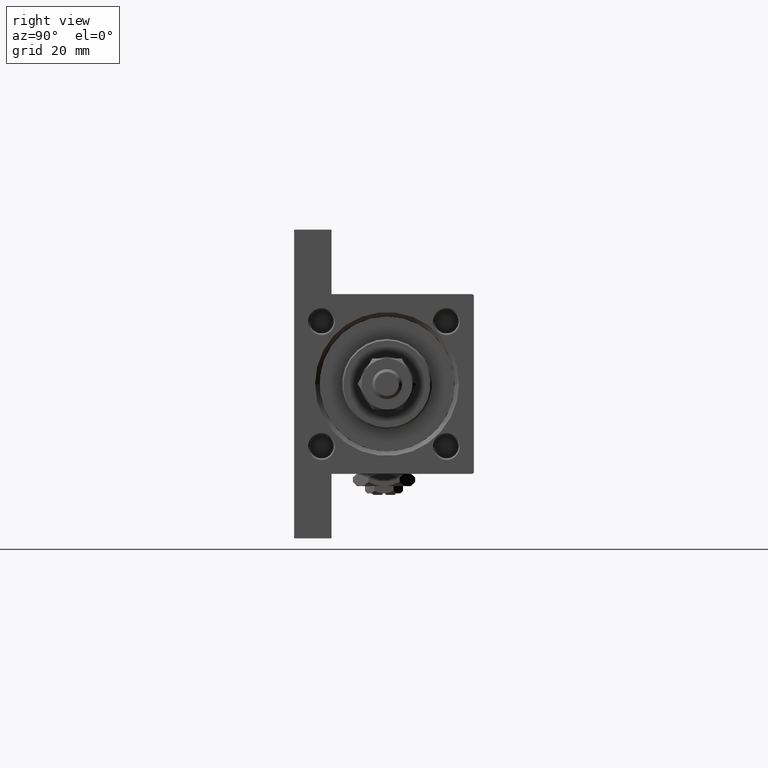
[diagram: clean part render]
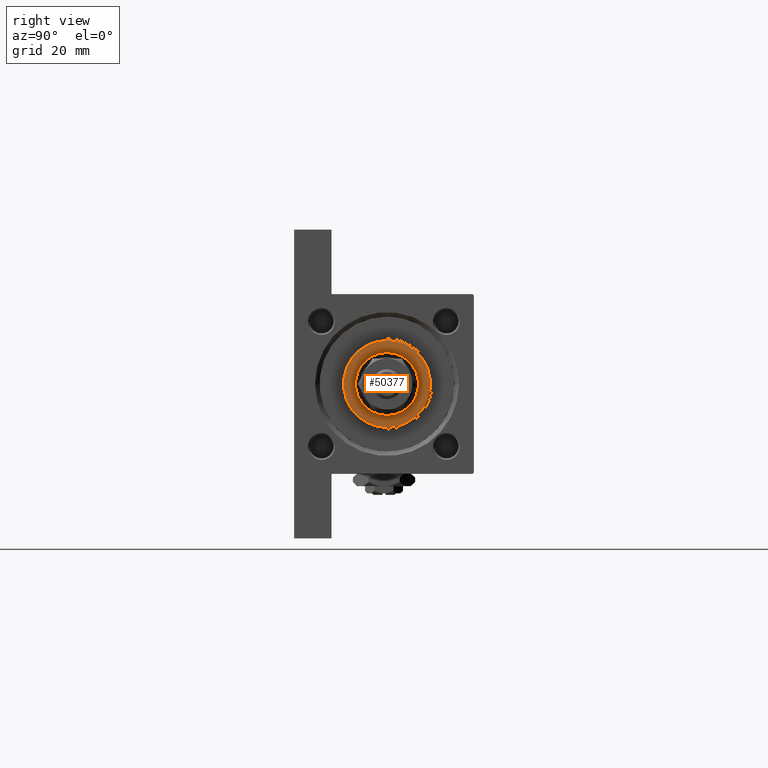
[diagram: same view with one face highlighted and labeled with its STEP entity id]
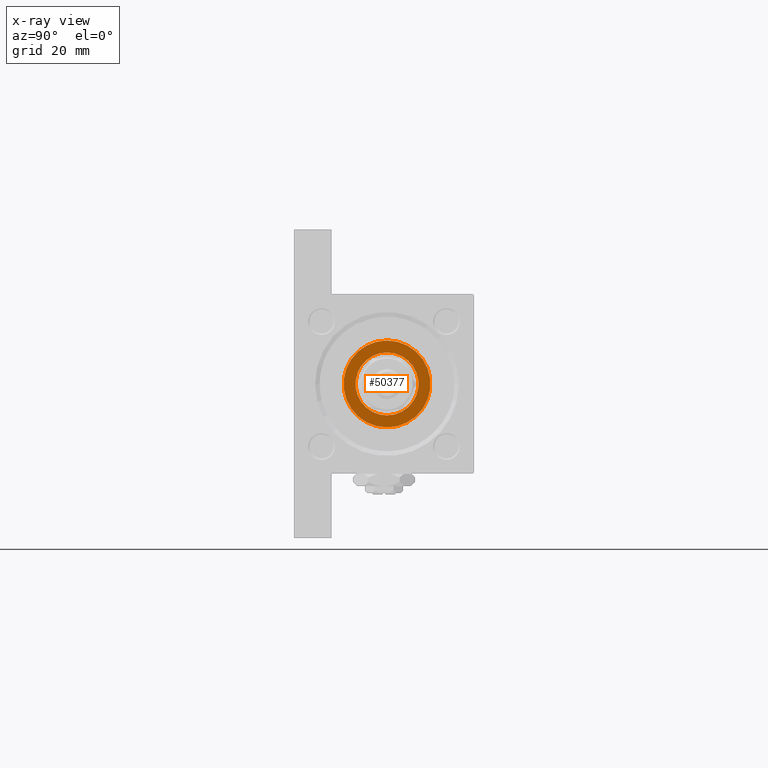
[diagram: x-ray of the same camera — body ghosted, the highlighted face saturated]
A machine part, right view. The second image highlights one B-rep face of the part: STEP entity #50377.
The next image is the same camera in x-ray: the body ghosted, the highlighted face saturated — about 0% of this face is hidden behind the body in this view.
In plain terms, the highlighted planar face has unit normal (1, 0, 0).
Its self-contained STEP definition (entity closure, byte-faithful):
#4028 = ORIENTED_EDGE ( 'NONE', *, *, #26335, .F. ) ;
#4838 = ORIENTED_EDGE ( 'NONE', *, *, #27908, .T. ) ;
#5103 = AXIS2_PLACEMENT_3D ( 'NONE', #43125, #38901, #23512 ) ;
#6134 = DIRECTION ( 'NONE',  ( 0.000000000000000000, 0.000000000000000000, 1.000000000000000000 ) ) ;
#7123 = CARTESIAN_POINT ( 'NONE',  ( -10.50000000000000000, 1.285879139104720831E-15, 36.69999999999999574 ) ) ;
#10323 = CARTESIAN_POINT ( 'NONE',  ( 0.000000000000000000, 0.000000000000000000, 36.69999999999999574 ) ) ;
#10708 = AXIS2_PLACEMENT_3D ( 'NONE', #10323, #34140, #13505 ) ;
#10809 = AXIS2_PLACEMENT_3D ( 'NONE', #43634, #31967, #31446 ) ;
#12538 = DIRECTION ( 'NONE',  ( 1.000000000000000000, 0.000000000000000000, 0.000000000000000000 ) ) ;
#12672 = VERTEX_POINT ( 'NONE', #14372 ) ;
#13505 = DIRECTION ( 'NONE',  ( 1.000000000000000000, 0.000000000000000000, -0.000000000000000000 ) ) ;
#13769 = EDGE_LOOP ( 'NONE', ( #4028, #35576 ) ) ;
#14323 = DIRECTION ( 'NONE',  ( 1.000000000000000000, 0.000000000000000000, 0.000000000000000000 ) ) ;
#14372 = CARTESIAN_POINT ( 'NONE',  ( 14.50000000000001776, 1.806354028742346985E-15, 36.69999999999999574 ) ) ;
#14458 = EDGE_CURVE ( 'NONE', #26589, #52146, #44609, .T. ) ;
#16897 = CIRCLE ( 'NONE', #43980, 10.50000000000000000 ) ;
#20583 = CIRCLE ( 'NONE', #45108, 14.50000000000001776 ) ;
#21163 = CIRCLE ( 'NONE', #5103, 14.50000000000001776 ) ;
#22148 = CARTESIAN_POINT ( 'NONE',  ( -14.50000000000001776, 0.000000000000000000, 36.69999999999999574 ) ) ;
#22263 = CARTESIAN_POINT ( 'NONE',  ( 0.000000000000000000, 0.000000000000000000, 36.69999999999999574 ) ) ;
#23512 = DIRECTION ( 'NONE',  ( 1.000000000000000000, 0.000000000000000000, 0.000000000000000000 ) ) ;
#26335 = EDGE_CURVE ( 'NONE', #52146, #26589, #16897, .T. ) ;
#26589 = VERTEX_POINT ( 'NONE', #7123 ) ;
#27908 = EDGE_CURVE ( 'NONE', #12672, #48343, #21163, .T. ) ;
#31446 = DIRECTION ( 'NONE',  ( 1.000000000000000000, 0.000000000000000000, 0.000000000000000000 ) ) ;
#31967 = DIRECTION ( 'NONE',  ( 0.000000000000000000, 0.000000000000000000, 1.000000000000000000 ) ) ;
#34140 = DIRECTION ( 'NONE',  ( 0.000000000000000000, 0.000000000000000000, 1.000000000000000000 ) ) ;
#35576 = ORIENTED_EDGE ( 'NONE', *, *, #14458, .F. ) ;
#37251 = EDGE_CURVE ( 'NONE', #48343, #12672, #20583, .T. ) ;
#38901 = DIRECTION ( 'NONE',  ( 0.000000000000000000, 0.000000000000000000, 1.000000000000000000 ) ) ;
#39786 = CARTESIAN_POINT ( 'NONE',  ( 10.50000000000000000, 0.000000000000000000, 36.69999999999999574 ) ) ;
#40240 = DIRECTION ( 'NONE',  ( 0.000000000000000000, 0.000000000000000000, 1.000000000000000000 ) ) ;
#42354 = FACE_BOUND ( 'NONE', #13769, .T. ) ;
#43125 = CARTESIAN_POINT ( 'NONE',  ( 0.000000000000000000, 0.000000000000000000, 36.69999999999999574 ) ) ;
#43634 = CARTESIAN_POINT ( 'NONE',  ( 0.000000000000000000, 0.000000000000000000, 36.69999999999999574 ) ) ;
#43980 = AXIS2_PLACEMENT_3D ( 'NONE', #22263, #6134, #14323 ) ;
#44609 = CIRCLE ( 'NONE', #10809, 10.50000000000000000 ) ;
#45108 = AXIS2_PLACEMENT_3D ( 'NONE', #49643, #40240, #12538 ) ;
#46050 = PLANE ( 'NONE',  #10708 ) ;
#46582 = FACE_OUTER_BOUND ( 'NONE', #51445, .T. ) ;
#48343 = VERTEX_POINT ( 'NONE', #22148 ) ;
#49643 = CARTESIAN_POINT ( 'NONE',  ( 0.000000000000000000, 0.000000000000000000, 36.69999999999999574 ) ) ;
#50377 = ADVANCED_FACE ( 'NONE', ( #42354, #46582 ), #46050, .T. ) ;
#51392 = ORIENTED_EDGE ( 'NONE', *, *, #37251, .T. ) ;
#51445 = EDGE_LOOP ( 'NONE', ( #51392, #4838 ) ) ;
#52146 = VERTEX_POINT ( 'NONE', #39786 ) ;